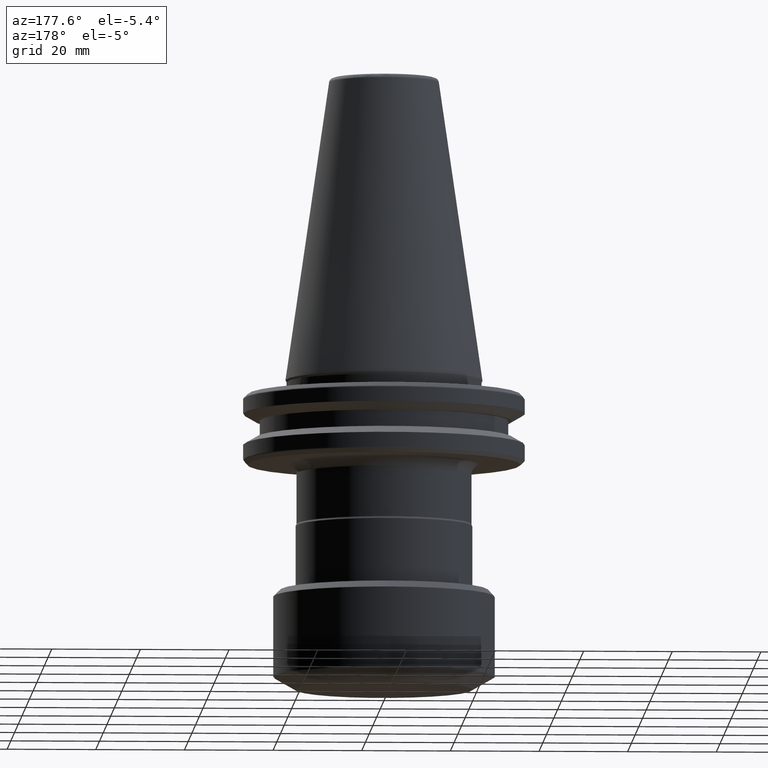
[diagram: clean part render]
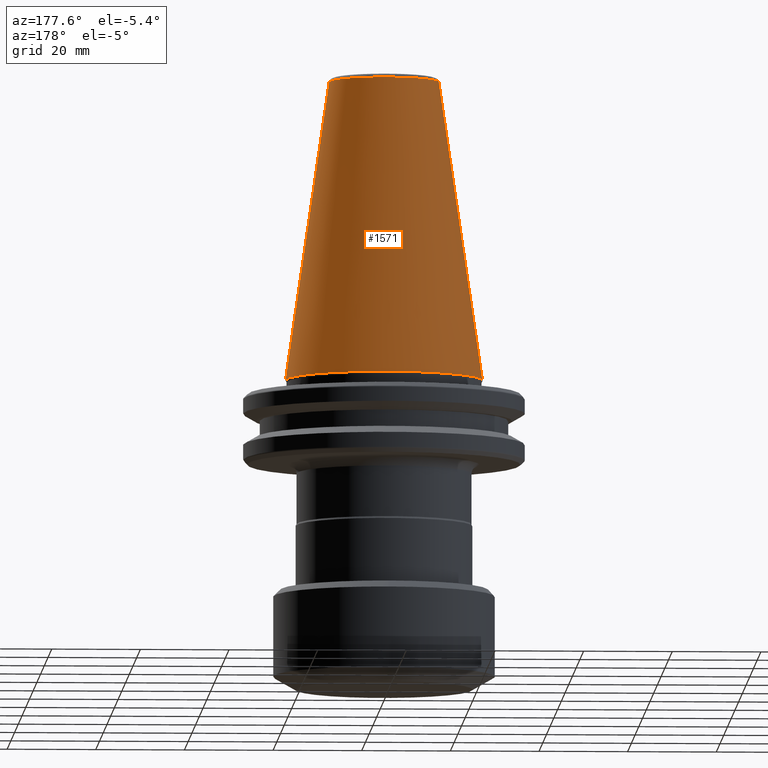
[diagram: same view with one face highlighted and labeled with its STEP entity id]
A machine part, auxiliary view. The second image highlights one B-rep face of the part: STEP entity #1571.
In plain terms, the highlighted conical surface has half-angle 8.297 deg.
Its self-contained STEP definition (entity closure, byte-faithful):
#40 = CARTESIAN_POINT ( 'NONE',  ( -12.37469537600000400, 0.0000000000000000000, 67.54430822700000200 ) ) ;
#50 = AXIS2_PLACEMENT_3D ( 'NONE', #140, #137, #132 ) ;
#71 = DIRECTION ( 'NONE',  ( -0.1443082272694599400, 0.0000000000000000000, -0.9895327864918603800 ) ) ;
#75 = CARTESIAN_POINT ( 'NONE',  ( -22.22499999999999400, 0.0000000000000000000, 0.0000000000000000000 ) ) ;
#129 = DIRECTION ( 'NONE',  ( 0.0000000000000000000, 0.0000000000000000000, -1.000000000000000000 ) ) ;
#132 = DIRECTION ( 'NONE',  ( -1.000000000000000000, 0.0000000000000000000, 0.0000000000000000000 ) ) ;
#137 = DIRECTION ( 'NONE',  ( -0.0000000000000000000, -0.0000000000000000000, 1.000000000000000000 ) ) ;
#139 = CIRCLE ( 'NONE', #1402, 12.37469537600000400 ) ;
#140 = CARTESIAN_POINT ( 'NONE',  ( 0.0000000000000000000, 0.0000000000000000000, 0.0000000000000000000 ) ) ;
#143 = DIRECTION ( 'NONE',  ( -1.000000000000000000, 0.0000000000000000000, 0.0000000000000000000 ) ) ;
#148 = CARTESIAN_POINT ( 'NONE',  ( 0.0000000000000000000, 0.0000000000000000000, 0.0000000000000000000 ) ) ;
#212 = EDGE_LOOP ( 'NONE', ( #770, #832, #858, #1059 ) ) ;
#275 = DIRECTION ( 'NONE',  ( 0.1443082272694599400, 1.767266086161729200E-017, -0.9895327864918603800 ) ) ;
#293 = CARTESIAN_POINT ( 'NONE',  ( 22.22499999999999400, 2.721777511104992100E-015, 0.0000000000000000000 ) ) ;
#364 = EDGE_CURVE ( 'NONE', #916, #704, #139, .T. ) ;
#382 = CONICAL_SURFACE ( 'NONE', #622, 22.22499999999999400, 0.1448138465495947800 ) ;
#430 = CARTESIAN_POINT ( 'NONE',  ( 0.0000000000000000000, 0.0000000000000000000, 67.54430822699998800 ) ) ;
#503 = CARTESIAN_POINT ( 'NONE',  ( 12.37469537600000400, -9.137124401303337300E-010, 67.54430822700000200 ) ) ;
#621 = CARTESIAN_POINT ( 'NONE',  ( 22.22499999999999400, 2.721777511104992100E-015, 0.0000000000000000000 ) ) ;
#622 = AXIS2_PLACEMENT_3D ( 'NONE', #148, #129, #143 ) ;
#628 = VECTOR ( 'NONE', #71, 1000.000000000000100 ) ;
#652 = LINE ( 'NONE', #75, #628 ) ;
#658 = VERTEX_POINT ( 'NONE', #690 ) ;
#677 = VERTEX_POINT ( 'NONE', #621 ) ;
#690 = CARTESIAN_POINT ( 'NONE',  ( -22.22499999999999400, 0.0000000000000000000, 0.0000000000000000000 ) ) ;
#704 = VERTEX_POINT ( 'NONE', #503 ) ;
#770 = ORIENTED_EDGE ( 'NONE', *, *, #364, .T. ) ;
#792 = EDGE_CURVE ( 'NONE', #704, #677, #905, .T. ) ;
#832 = ORIENTED_EDGE ( 'NONE', *, *, #792, .T. ) ;
#858 = ORIENTED_EDGE ( 'NONE', *, *, #1565, .T. ) ;
#884 = EDGE_CURVE ( 'NONE', #916, #658, #652, .T. ) ;
#890 = VECTOR ( 'NONE', #275, 1000.000000000000100 ) ;
#905 = LINE ( 'NONE', #293, #890 ) ;
#916 = VERTEX_POINT ( 'NONE', #40 ) ;
#1059 = ORIENTED_EDGE ( 'NONE', *, *, #884, .F. ) ;
#1081 = CIRCLE ( 'NONE', #50, 22.22499999999999400 ) ;
#1147 = DIRECTION ( 'NONE',  ( -1.000000000000000000, 0.0000000000000000000, 0.0000000000000000000 ) ) ;
#1153 = DIRECTION ( 'NONE',  ( 0.0000000000000000000, 0.0000000000000000000, -1.000000000000000000 ) ) ;
#1402 = AXIS2_PLACEMENT_3D ( 'NONE', #430, #1153, #1147 ) ;
#1430 = FACE_OUTER_BOUND ( 'NONE', #212, .T. ) ;
#1565 = EDGE_CURVE ( 'NONE', #677, #658, #1081, .T. ) ;
#1571 = ADVANCED_FACE ( 'NONE', ( #1430 ), #382, .T. ) ;